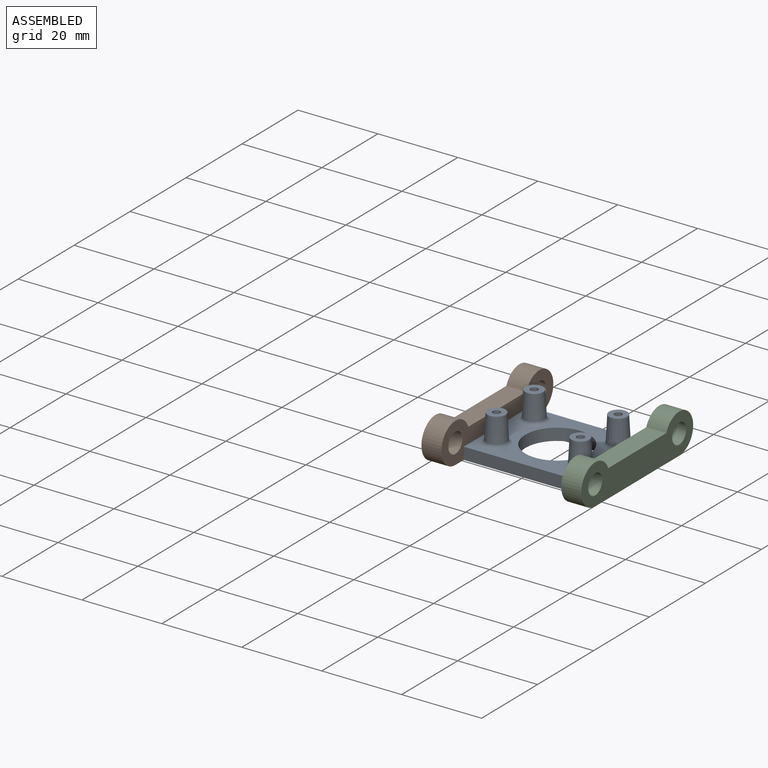
[diagram: assembled view]
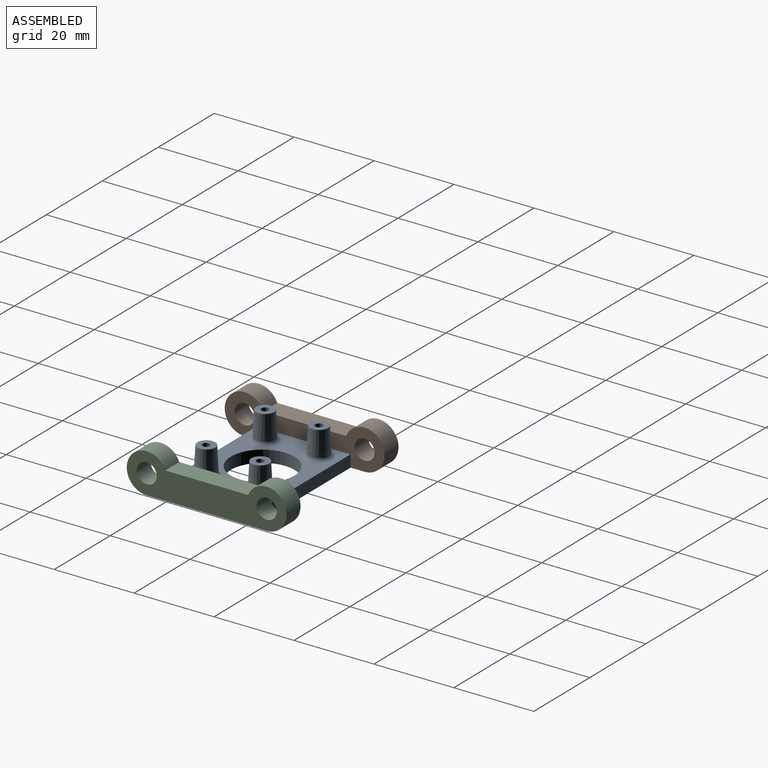
[diagram: assembled view, second angle]
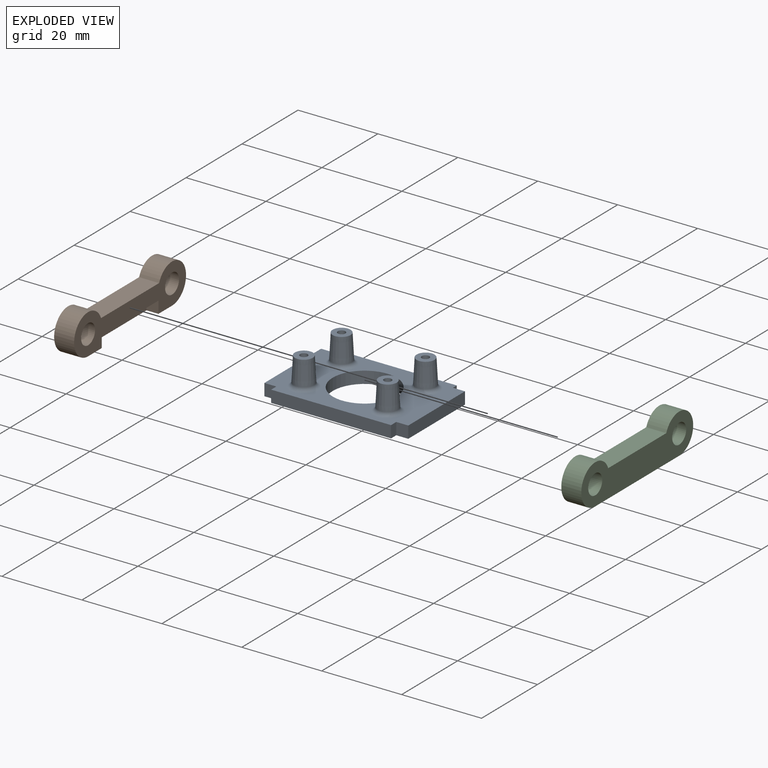
[diagram: exploded view]
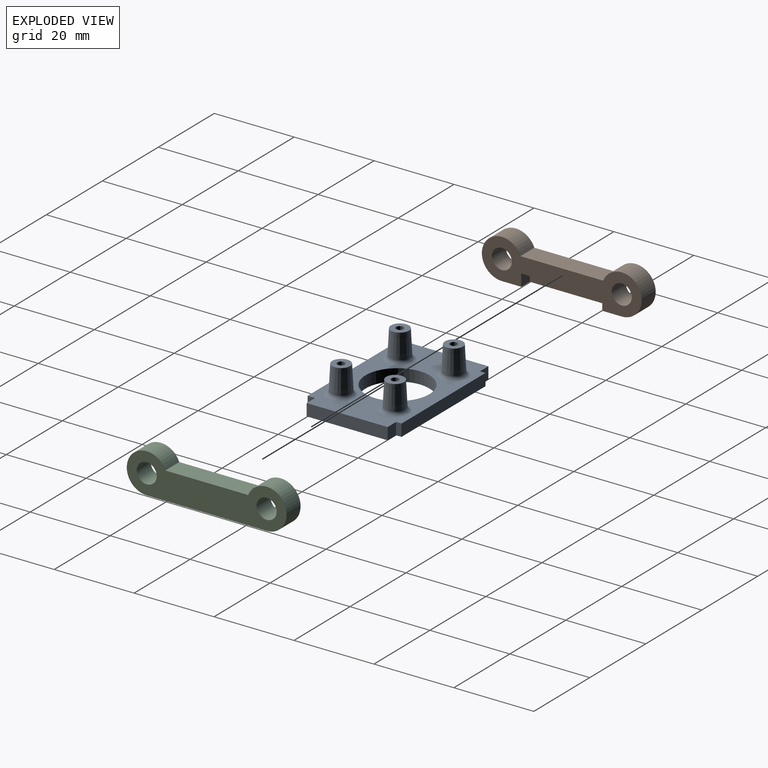
[diagram: exploded view, second angle]
ASSEMBLY  parts=3 mates=2
PART A: 35 faces, bbox 36x23.5x10 mm
  f0: plane 3x1.37mm, normal (-1,0,0), area 4.1mm2, adj f1,f12,f13,f14
  f1: plane 3x3mm, normal (0,1,0), area 9mm2, adj f0,f2,f13,f14
  f2: plane 20.27x3mm, normal (-1,0,0), area 60.8mm2, adj f1,f3,f13,f14
  f3: plane 3x3mm, normal (0,-1,0), area 9mm2, adj f2,f4,f13,f14
  f4: plane 3x1.87mm, normal (-1,0,0), area 5.6mm2, adj f3,f5,f13,f14
  f5: plane 30x3mm, normal (0,-1,0), area 90mm2, adj f4,f6,f13,f14
  f6: plane 3x1.87mm, normal (1,0,0), area 5.6mm2, adj f5,f7,f13,f14
  f7: plane 3x3mm, normal (0,-1,0), area 9mm2, adj f6,f8,f13,f14
  f8: plane 20.27x3mm, normal (1,0,0), area 60.8mm2, adj f7,f9,f13,f14
  f9: plane 3x3mm, normal (0,1,0), area 9mm2, adj f8,f10,f13,f14
  f10: plane 3x1.37mm, normal (1,0,0), area 4.1mm2, adj f9,f12,f13,f14
  f11: cylinder r=8mm len=16mm, axis (0,0,-1), area 150.8mm2, adj f13,f14
  f12: plane 30x3mm, normal (0,1,0), area 90mm2, adj f0,f10,f13,f14
  f13: plane 36x23.5mm, normal (0,0,1), area 465.7mm2, adj f0,f1,f2,f3,f4,f5,f6,f7
  f14: plane 36x23.5mm, normal (0,0,-1), area 625.5mm2, adj f0,f1,f2,f3,f4,f5,f6,f7
  f15: cone r=2.25mm half-angle=3deg, axis (0,0,-1), area 91.7mm2, adj f16,f26
  f16: plane 4.5x4.5mm, normal (0,0,1), area 13.1mm2, adj f15,f30
  f17: cone r=2.25mm half-angle=3deg, axis (0,0,-1), area 91.7mm2, adj f18,f24
  f18: plane 4.5x4.5mm, normal (0,0,1), area 13.1mm2, adj f17,f29
  f19: cone r=2.25mm half-angle=3deg, axis (0,0,-1), area 91.7mm2, adj f20,f23
  f20: plane 4.5x4.5mm, normal (0,0,1), area 13.1mm2, adj f19,f28
  f21: cone r=2.25mm half-angle=3deg, axis (0,0,-1), area 91.7mm2, adj f22,f25
  f22: plane 4.5x4.5mm, normal (0,0,1), area 13.1mm2, adj f21,f27
  f23: torus R=3.57mm, axis (0,0,1), area 28.1mm2, adj f13,f19
  f24: torus R=3.57mm, axis (0,0,1), area 28.1mm2, adj f13,f17
  f25: torus R=3.57mm, axis (0,0,1), area 28.1mm2, adj f13,f21
  f26: torus R=3.57mm, axis (0,0,1), area 28.1mm2, adj f13,f15
  f27: cylinder r=0.95mm len=7mm, axis (0,0,-1), area 41.8mm2, adj f22,f34
  f28: cylinder r=0.95mm len=7mm, axis (0,0,-1), area 41.8mm2, adj f20,f33
  f29: cylinder r=0.95mm len=7mm, axis (0,0,-1), area 41.8mm2, adj f18,f32
  f30: cylinder r=0.95mm len=7mm, axis (0,0,-1), area 41.8mm2, adj f16,f31
  f31: plane 1.9x1.9mm, normal (0,0,1), area 2.8mm2, adj f30
  f32: plane 1.9x1.9mm, normal (0,0,1), area 2.8mm2, adj f29
  f33: plane 1.9x1.9mm, normal (0,0,1), area 2.8mm2, adj f28
  f34: plane 1.9x1.9mm, normal (0,0,1), area 2.8mm2, adj f27
PART B: 12 faces, bbox 10x40x5 mm
  f0: plane 20.27x3mm, normal (0,0,1), area 60.8mm2, adj f1,f8,f9,f10
  f1: plane 30x5mm, normal (-1,0,0), area 89.2mm2, adj f0,f2,f6,f7,f8,f10,f11
  f2: cylinder r=5mm len=10mm, axis (0,0,-1), area 108.2mm2, adj f1,f3,f7,f11
  f3: plane 20.73x5mm, normal (1,0,0), area 103.6mm2, adj f2,f6,f7,f11
  f4: cylinder r=2.5mm len=5mm, axis (0,0,-1), area 78.5mm2, adj f7,f11
  f5: cylinder r=2.5mm len=5mm, axis (0,0,-1), area 78.5mm2, adj f7,f11
  f6: cylinder r=5mm len=10mm, axis (0,0,-1), area 108.2mm2, adj f1,f3,f7,f11
  f7: plane 40x10mm, normal (0,0,-1), area 266.4mm2, adj f1,f2,f3,f4,f5,f6
  f8: plane 3x3mm, normal (0,-1,0), area 9mm2, adj f0,f1,f9,f11
  f9: plane 20.27x3mm, normal (-1,0,0), area 60.8mm2, adj f0,f8,f10,f11
  f10: plane 3x3mm, normal (0,1,0), area 9mm2, adj f0,f1,f9,f11
  f11: plane 40x10mm, normal (0,0,1), area 205.6mm2, adj f1,f2,f3,f4,f5,f6,f8,f9
PART C: 12 faces, bbox 10x40x5 mm
  f0: cylinder r=5mm len=10mm, axis (0,0,-1), area 108.2mm2, adj f1,f4,f7,f11
  f1: plane 30x5mm, normal (1,0,0), area 89.2mm2, adj f0,f2,f6,f7,f8,f9,f11
  f2: cylinder r=5mm len=10mm, axis (0,0,-1), area 108.2mm2, adj f1,f4,f7,f11
  f3: cylinder r=2.5mm len=5mm, axis (0,0,-1), area 78.5mm2, adj f7,f11
  f4: plane 20.73x5mm, normal (-1,0,0), area 103.6mm2, adj f0,f2,f7,f11
  f5: cylinder r=2.5mm len=5mm, axis (0,0,-1), area 78.5mm2, adj f7,f11
  f6: plane 20.27x3mm, normal (0,0,1), area 60.8mm2, adj f1,f8,f9,f10
  f7: plane 40x10mm, normal (0,0,-1), area 266.4mm2, adj f0,f1,f2,f3,f4,f5
  f8: plane 3x3mm, normal (0,-1,0), area 9mm2, adj f1,f6,f10,f11
  f9: plane 3x3mm, normal (0,1,0), area 9mm2, adj f1,f6,f10,f11
  f10: plane 20.27x3mm, normal (1,0,0), area 60.8mm2, adj f6,f8,f9,f11
  f11: plane 40x10mm, normal (0,0,1), area 205.6mm2, adj f0,f1,f2,f3,f4,f5,f8,f9
PLACE A t=(1.22,-8.99,7.26)mm
PLACE B rot(axis=(0.71,0,0.71),180deg) t=(-18.78,-8.99,-15.81)mm
PLACE C rot(axis=(0.71,0,-0.71),180deg) t=(21.22,-8.99,-15.81)mm
MATE parallel B.f0 <-> A.f2  axis (1,0,0) through (-16.78,-8.99,8.76)mm
MATE parallel C.f6 <-> A.f8  axis (-1,0,0) through (19.22,-8.99,8.76)mm
